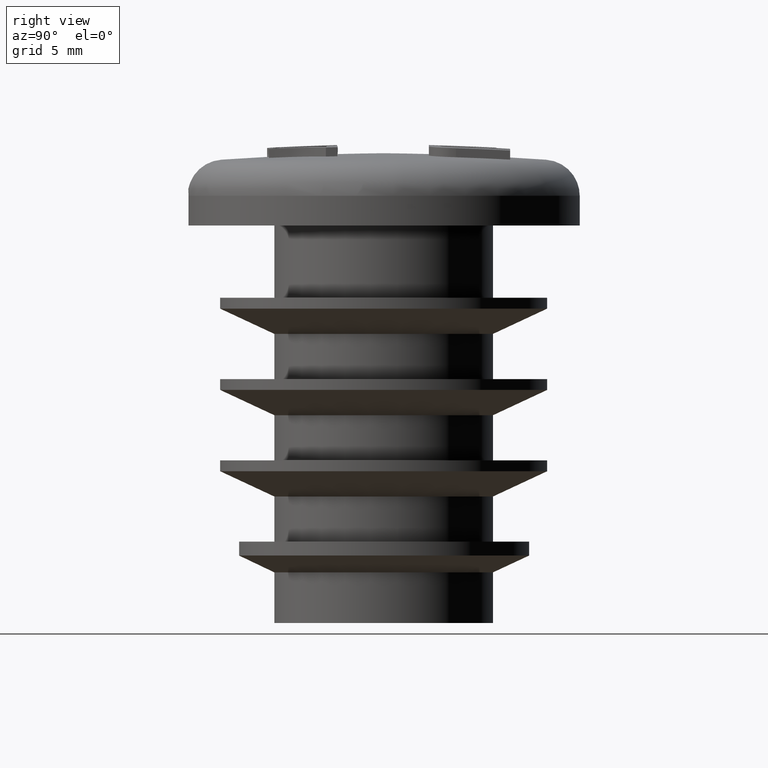
[diagram: clean part render]
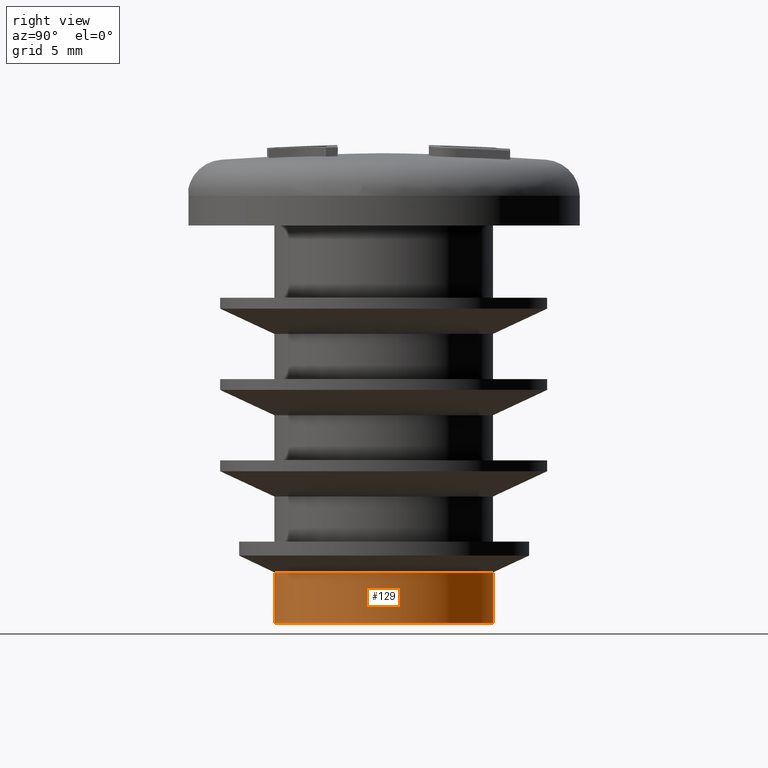
[diagram: same view with one face highlighted and labeled with its STEP entity id]
A machine part, right view. The second image highlights one B-rep face of the part: STEP entity #129.
In plain terms, the highlighted cylindrical surface (bore or boss wall) has radius 6.05 mm, axis along (0, 0, 1).
Its self-contained STEP definition (entity closure, byte-faithful):
#129 = ADVANCED_FACE( '', ( #296, #297 ), #298, .T. );
#296 = FACE_OUTER_BOUND( '', #662, .T. );
#297 = FACE_OUTER_BOUND( '', #663, .T. );
#298 = CYLINDRICAL_SURFACE( '', #664, 6.05000000000001 );
#662 = EDGE_LOOP( '', ( #1174 ) );
#663 = EDGE_LOOP( '', ( #1175 ) );
#664 = AXIS2_PLACEMENT_3D( '', #1176, #1177, #1178 );
#1174 = ORIENTED_EDGE( '', *, *, #1536, .F. );
#1175 = ORIENTED_EDGE( '', *, *, #1535, .T. );
#1176 = CARTESIAN_POINT( '', ( 0.000000000000000, 0.000000000000000, 22.0000000000000 ) );
#1177 = DIRECTION( '', ( 0.000000000000000, 6.12303176911189E-017, 1.00000000000000 ) );
#1178 = DIRECTION( '', ( 0.000000000000000, 1.00000000000000, -6.12303176911189E-017 ) );
#1535 = EDGE_CURVE( '', #1808, #1808, #1809, .T. );
#1536 = EDGE_CURVE( '', #1810, #1810, #1811, .T. );
#1808 = VERTEX_POINT( '', #2616 );
#1809 = CIRCLE( '', #2617, 6.05000000000001 );
#1810 = VERTEX_POINT( '', #2618 );
#1811 = CIRCLE( '', #2619, 6.05000000000000 );
#2616 = CARTESIAN_POINT( '', ( 0.000000000000000, 6.05000000000001, 2.80000000000000 ) );
#2617 = AXIS2_PLACEMENT_3D( '', #2931, #2932, #2933 );
#2618 = CARTESIAN_POINT( '', ( 0.000000000000000, 6.05000000000000, 6.56845048187596E-015 ) );
#2619 = AXIS2_PLACEMENT_3D( '', #2934, #2935, #2936 );
#2931 = CARTESIAN_POINT( '', ( 0.000000000000000, -1.17562209966948E-015, 2.80000000000000 ) );
#2932 = DIRECTION( '', ( 0.000000000000000, -6.12303176911189E-017, -1.00000000000000 ) );
#2933 = DIRECTION( '', ( 0.000000000000000, 1.00000000000000, -6.12303176911189E-017 ) );
#2934 = CARTESIAN_POINT( '', ( 0.000000000000000, -1.34706698920461E-015, 6.93889390390723E-015 ) );
#2935 = DIRECTION( '', ( 0.000000000000000, -6.12303176911189E-017, -1.00000000000000 ) );
#2936 = DIRECTION( '', ( 0.000000000000000, 1.00000000000000, -6.12303176911189E-017 ) );